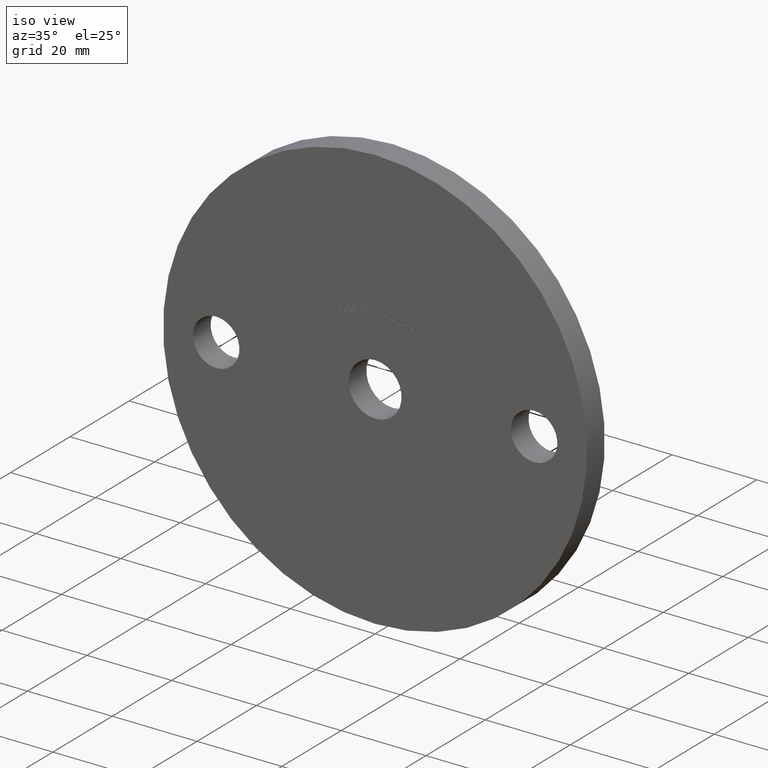
[diagram: clean part render]
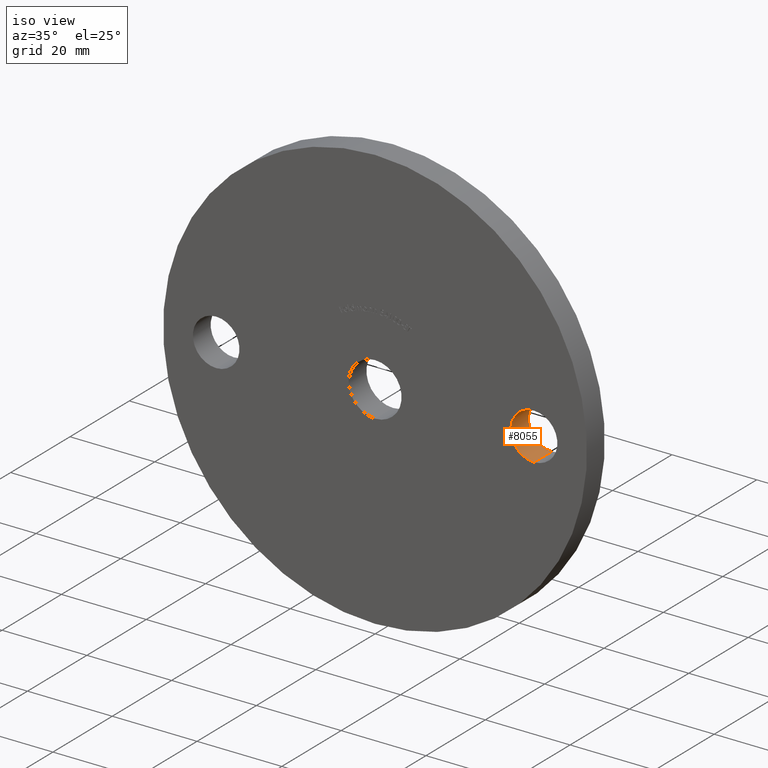
[diagram: same view with one face highlighted and labeled with its STEP entity id]
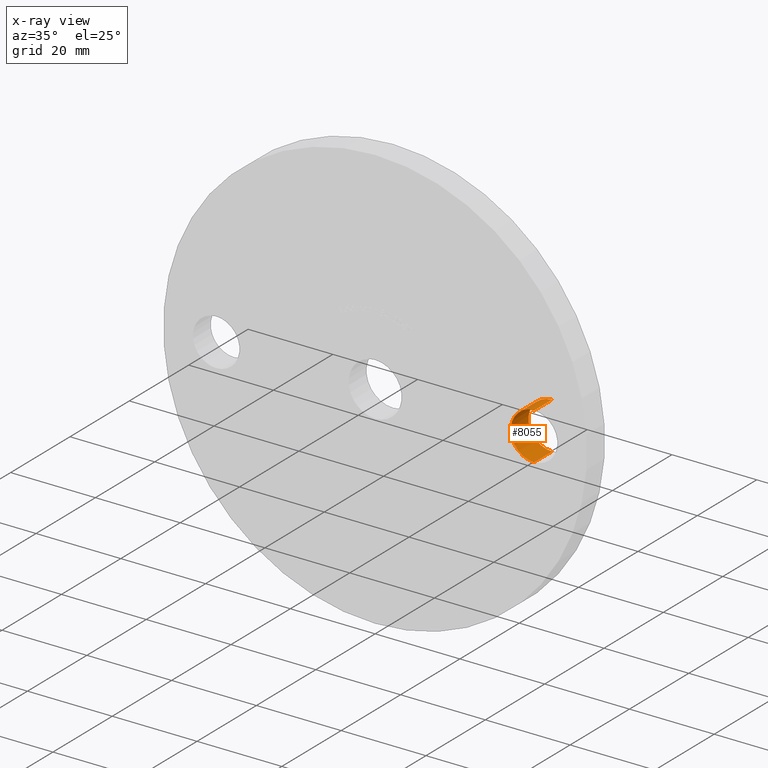
[diagram: x-ray of the same camera — body ghosted, the highlighted face saturated]
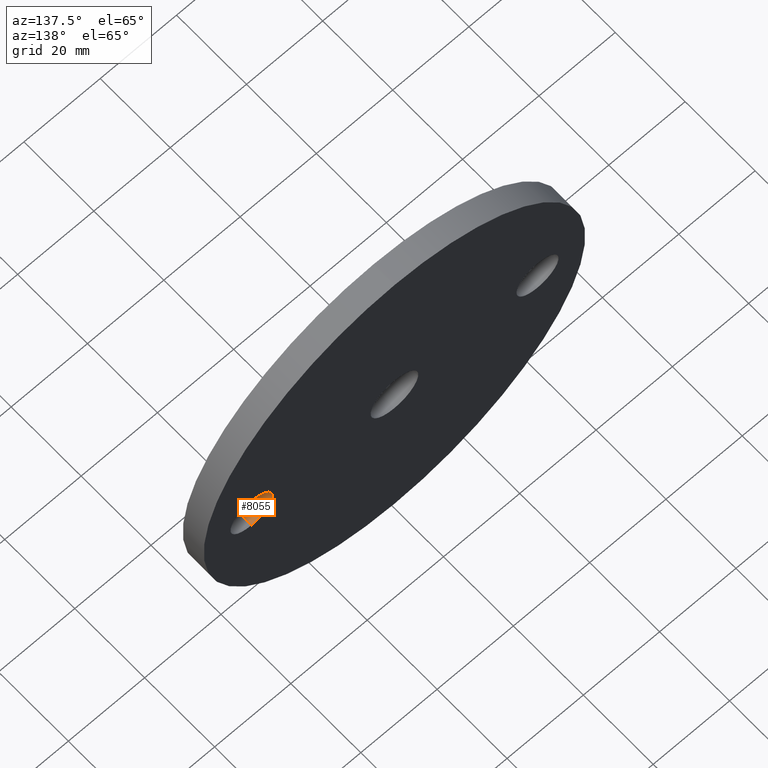
[diagram: same view with one face highlighted and labeled with its STEP entity id]
A machine part, iso view. The second image highlights one B-rep face of the part: STEP entity #8055.
The next image is the same camera in x-ray: the body ghosted, the highlighted face saturated — about 0% of this face is hidden behind the body in this view.
A second angle (auxiliary view) of the same face is appended — the face is thin or edge-on in the first view.
In plain terms, the highlighted cylindrical surface (edge-blend (fillet) strip) has radius 5.5 mm, axis along (-0, 1, -0).
Its self-contained STEP definition (entity closure, byte-faithful):
#32 = CYLINDRICAL_SURFACE ( 'NONE', #6551, 5.499999999999996400 ) ;
#148 = DIRECTION ( 'NONE',  ( -0.0000000000000000000, 1.000000000000000000, -0.0000000000000000000 ) ) ;
#176 = DIRECTION ( 'NONE',  ( 0.0000000000000000000, 0.0000000000000000000, 1.000000000000000000 ) ) ;
#208 = VERTEX_POINT ( 'NONE', #1717 ) ;
#869 = FACE_OUTER_BOUND ( 'NONE', #3017, .T. ) ;
#940 = CARTESIAN_POINT ( 'NONE',  ( 37.50000000000000000, 0.0000000000000000000, -5.500000000000005300 ) ) ;
#1655 = ORIENTED_EDGE ( 'NONE', *, *, #8301, .T. ) ;
#1717 = CARTESIAN_POINT ( 'NONE',  ( 37.50000000000000000, 6.000000000000000000, 5.499999999999986700 ) ) ;
#1976 = CARTESIAN_POINT ( 'NONE',  ( 37.50000000000000000, 6.000000000000000000, -9.184850993605148700E-015 ) ) ;
#2032 = DIRECTION ( 'NONE',  ( 0.0000000000000000000, 0.0000000000000000000, 1.000000000000000000 ) ) ;
#2210 = ORIENTED_EDGE ( 'NONE', *, *, #9351, .F. ) ;
#2411 = DIRECTION ( 'NONE',  ( 0.0000000000000000000, 1.000000000000000000, 0.0000000000000000000 ) ) ;
#2857 = VECTOR ( 'NONE', #7951, 1000.000000000000000 ) ;
#3017 = EDGE_LOOP ( 'NONE', ( #2210, #1655, #4680, #9025 ) ) ;
#4388 = LINE ( 'NONE', #11511, #2857 ) ;
#4477 = VECTOR ( 'NONE', #148, 1000.000000000000000 ) ;
#4632 = DIRECTION ( 'NONE',  ( -0.0000000000000000000, 1.000000000000000000, -0.0000000000000000000 ) ) ;
#4680 = ORIENTED_EDGE ( 'NONE', *, *, #10141, .T. ) ;
#4713 = EDGE_CURVE ( 'NONE', #6616, #208, #4388, .T. ) ;
#5347 = VERTEX_POINT ( 'NONE', #9147 ) ;
#5369 = CARTESIAN_POINT ( 'NONE',  ( 37.50000000000000000, 6.000000000000000000, -5.500000000000005300 ) ) ;
#5654 = AXIS2_PLACEMENT_3D ( 'NONE', #1976, #10799, #176 ) ;
#5867 = DIRECTION ( 'NONE',  ( 0.0000000000000000000, 0.0000000000000000000, 1.000000000000000000 ) ) ;
#6414 = CARTESIAN_POINT ( 'NONE',  ( 37.50000000000000000, 0.0000000000000000000, -9.184850993605148700E-015 ) ) ;
#6551 = AXIS2_PLACEMENT_3D ( 'NONE', #6414, #4632, #2032 ) ;
#6616 = VERTEX_POINT ( 'NONE', #10543 ) ;
#6777 = AXIS2_PLACEMENT_3D ( 'NONE', #6797, #2411, #5867 ) ;
#6797 = CARTESIAN_POINT ( 'NONE',  ( 37.50000000000000000, 0.0000000000000000000, -9.184850993605148700E-015 ) ) ;
#7394 = LINE ( 'NONE', #940, #4477 ) ;
#7917 = CIRCLE ( 'NONE', #5654, 5.499999999999996400 ) ;
#7951 = DIRECTION ( 'NONE',  ( -0.0000000000000000000, 1.000000000000000000, -0.0000000000000000000 ) ) ;
#7978 = VERTEX_POINT ( 'NONE', #5369 ) ;
#8055 = ADVANCED_FACE ( 'NONE', ( #869 ), #32, .F. ) ;
#8199 = CIRCLE ( 'NONE', #6777, 5.499999999999996400 ) ;
#8301 = EDGE_CURVE ( 'NONE', #5347, #7978, #7394, .T. ) ;
#9025 = ORIENTED_EDGE ( 'NONE', *, *, #4713, .F. ) ;
#9147 = CARTESIAN_POINT ( 'NONE',  ( 37.50000000000000000, 0.0000000000000000000, -5.500000000000005300 ) ) ;
#9351 = EDGE_CURVE ( 'NONE', #5347, #6616, #8199, .T. ) ;
#10141 = EDGE_CURVE ( 'NONE', #7978, #208, #7917, .T. ) ;
#10543 = CARTESIAN_POINT ( 'NONE',  ( 37.50000000000000000, 0.0000000000000000000, 5.499999999999986700 ) ) ;
#10799 = DIRECTION ( 'NONE',  ( 0.0000000000000000000, 1.000000000000000000, 0.0000000000000000000 ) ) ;
#11511 = CARTESIAN_POINT ( 'NONE',  ( 37.50000000000000000, 0.0000000000000000000, 5.499999999999986700 ) ) ;